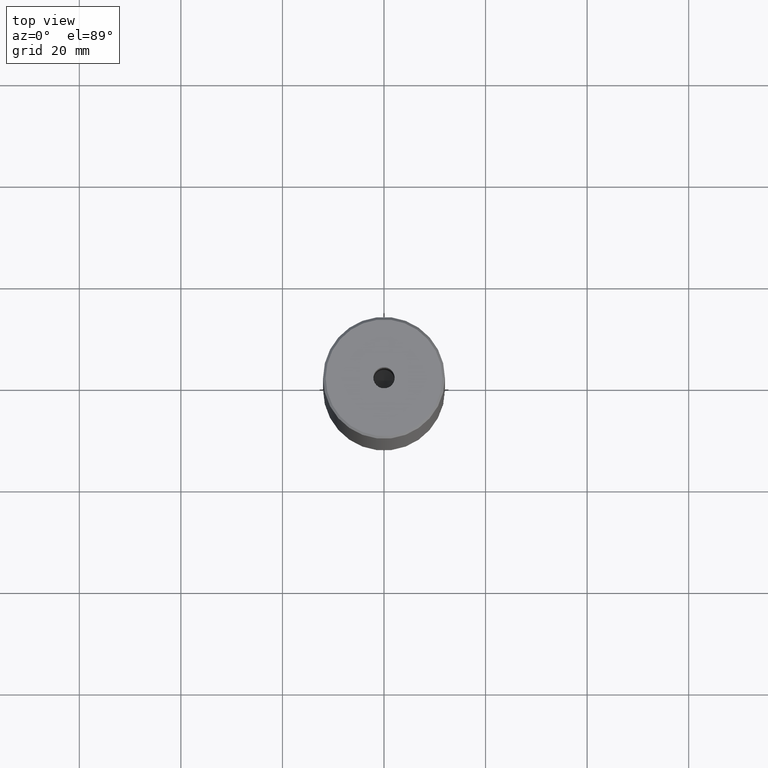
[diagram: clean part render]
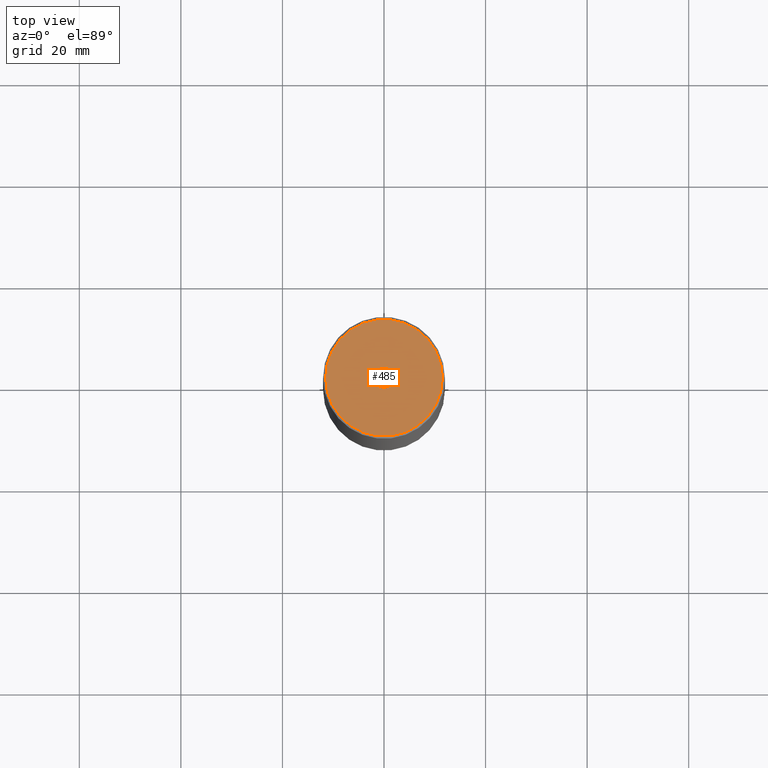
[diagram: same view with one face highlighted and labeled with its STEP entity id]
A machine part, top view. The second image highlights one B-rep face of the part: STEP entity #485.
In plain terms, the highlighted planar face has unit normal (0, -0, 1).
Its self-contained STEP definition (entity closure, byte-faithful):
#5 = CARTESIAN_POINT ( 'NONE',  ( 0.000000000000000000, 0.000000000000000000, 0.000000000000000000 ) ) ;
#7 = EDGE_CURVE ( 'NONE', #310, #391, #514, .T. ) ;
#22 = CIRCLE ( 'NONE', #196, 2.099999999999998757 ) ;
#35 = CARTESIAN_POINT ( 'NONE',  ( 0.000000000000000000, 0.000000000000000000, -1.990051048614449116E-16 ) ) ;
#36 = CARTESIAN_POINT ( 'NONE',  ( 11.49999999999999467, 1.438959988998139766E-15, 0.000000000000000000 ) ) ;
#38 = DIRECTION ( 'NONE',  ( 1.000000000000000000, 0.000000000000000000, 0.000000000000000000 ) ) ;
#58 = DIRECTION ( 'NONE',  ( 1.000000000000000000, 0.000000000000000000, 0.000000000000000000 ) ) ;
#81 = DIRECTION ( 'NONE',  ( 1.000000000000000000, 0.000000000000000000, 0.000000000000000000 ) ) ;
#95 = AXIS2_PLACEMENT_3D ( 'NONE', #568, #565, #58 ) ;
#115 = ORIENTED_EDGE ( 'NONE', *, *, #238, .F. ) ;
#135 = AXIS2_PLACEMENT_3D ( 'NONE', #188, #547, #400 ) ;
#148 = DIRECTION ( 'NONE',  ( 1.000000000000000000, 0.000000000000000000, 0.000000000000000000 ) ) ;
#153 = CIRCLE ( 'NONE', #135, 11.49999999999999467 ) ;
#154 = AXIS2_PLACEMENT_3D ( 'NONE', #5, #508, #148 ) ;
#188 = CARTESIAN_POINT ( 'NONE',  ( 0.000000000000000000, 0.000000000000000000, 0.000000000000000000 ) ) ;
#196 = AXIS2_PLACEMENT_3D ( 'NONE', #263, #258, #81 ) ;
#203 = PLANE ( 'NONE',  #95 ) ;
#214 = DIRECTION ( 'NONE',  ( -0.000000000000000000, -0.000000000000000000, 1.000000000000000000 ) ) ;
#216 = EDGE_CURVE ( 'NONE', #292, #246, #153, .T. ) ;
#222 = ORIENTED_EDGE ( 'NONE', *, *, #275, .T. ) ;
#238 = EDGE_CURVE ( 'NONE', #391, #310, #22, .T. ) ;
#246 = VERTEX_POINT ( 'NONE', #36 ) ;
#258 = DIRECTION ( 'NONE',  ( -0.000000000000000000, -0.000000000000000000, 1.000000000000000000 ) ) ;
#263 = CARTESIAN_POINT ( 'NONE',  ( 0.000000000000000000, 0.000000000000000000, -1.990051048614449116E-16 ) ) ;
#275 = EDGE_CURVE ( 'NONE', #246, #292, #288, .T. ) ;
#279 = CARTESIAN_POINT ( 'NONE',  ( -11.49999999999999467, 0.000000000000000000, 0.000000000000000000 ) ) ;
#288 = CIRCLE ( 'NONE', #154, 11.49999999999999467 ) ;
#291 = FACE_OUTER_BOUND ( 'NONE', #371, .T. ) ;
#292 = VERTEX_POINT ( 'NONE', #279 ) ;
#297 = ORIENTED_EDGE ( 'NONE', *, *, #216, .T. ) ;
#310 = VERTEX_POINT ( 'NONE', #368 ) ;
#363 = AXIS2_PLACEMENT_3D ( 'NONE', #35, #214, #38 ) ;
#368 = CARTESIAN_POINT ( 'NONE',  ( 2.099999999999998757, 0.000000000000000000, -1.990051048614449116E-16 ) ) ;
#371 = EDGE_LOOP ( 'NONE', ( #297, #222 ) ) ;
#391 = VERTEX_POINT ( 'NONE', #413 ) ;
#400 = DIRECTION ( 'NONE',  ( 1.000000000000000000, 0.000000000000000000, 0.000000000000000000 ) ) ;
#413 = CARTESIAN_POINT ( 'NONE',  ( -2.099999999999998757, 2.571758278209440478E-16, -1.990051048614449116E-16 ) ) ;
#485 = ADVANCED_FACE ( 'NONE', ( #528, #291 ), #203, .T. ) ;
#508 = DIRECTION ( 'NONE',  ( -0.000000000000000000, -0.000000000000000000, 1.000000000000000000 ) ) ;
#514 = CIRCLE ( 'NONE', #363, 2.099999999999998757 ) ;
#528 = FACE_BOUND ( 'NONE', #577, .T. ) ;
#541 = ORIENTED_EDGE ( 'NONE', *, *, #7, .F. ) ;
#547 = DIRECTION ( 'NONE',  ( -0.000000000000000000, -0.000000000000000000, 1.000000000000000000 ) ) ;
#565 = DIRECTION ( 'NONE',  ( 0.000000000000000000, -0.000000000000000000, 1.000000000000000000 ) ) ;
#568 = CARTESIAN_POINT ( 'NONE',  ( 0.000000000000000000, 0.000000000000000000, 0.000000000000000000 ) ) ;
#577 = EDGE_LOOP ( 'NONE', ( #541, #115 ) ) ;